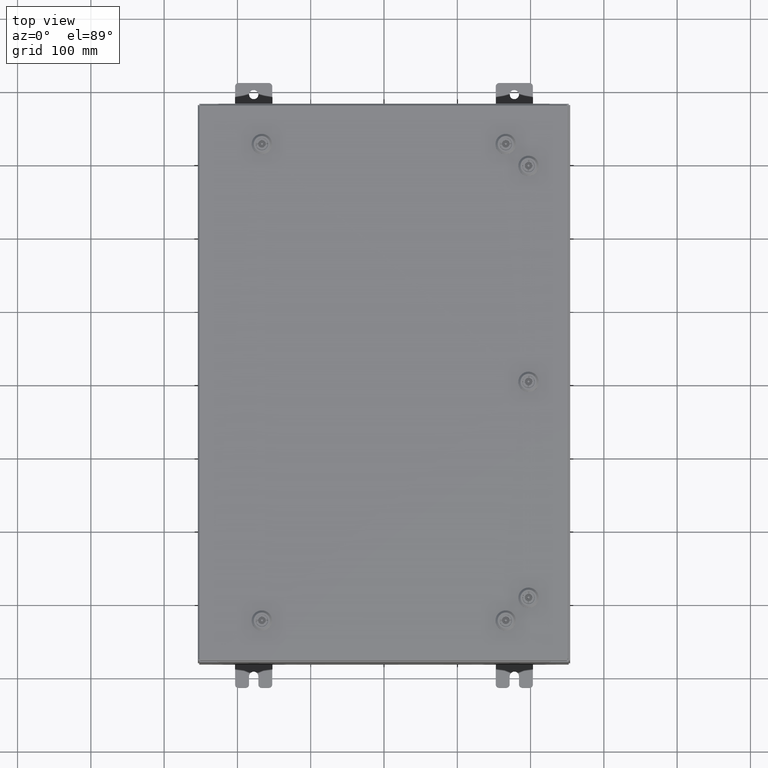
[diagram: clean part render]
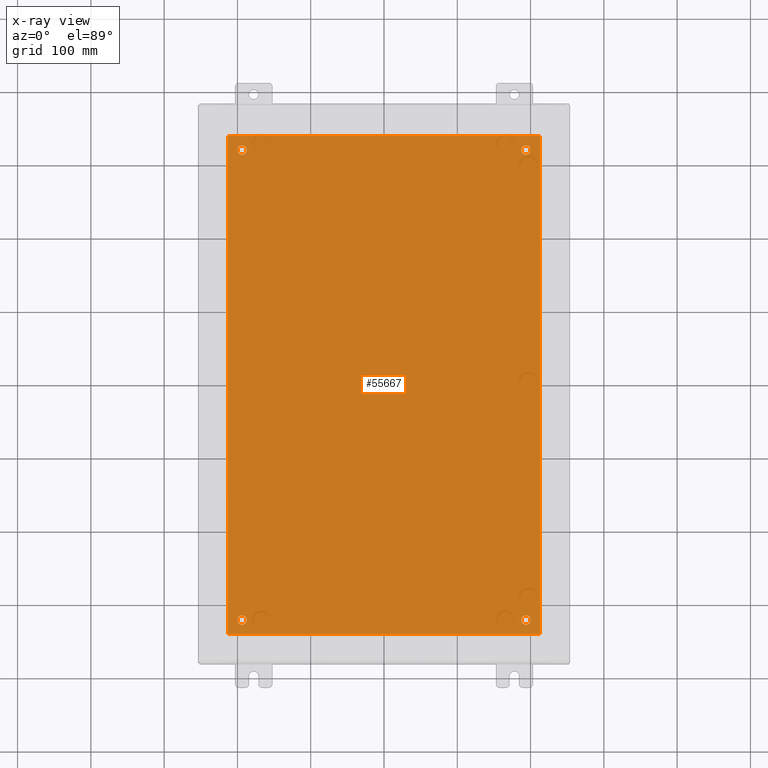
[diagram: x-ray — body ghosted, one internal face saturated and labeled with its STEP entity id]
A machine part, top view, then the same camera in x-ray: the body is ghosted and one INTERNAL B-rep face — a face not visible from any outside direction — is saturated and labeled: STEP entity #55667.
In plain terms, the highlighted planar face has unit normal (0, 0, -1).
Its self-contained STEP definition (entity closure, byte-faithful):
#570 = EDGE_LOOP ( 'NONE', ( #30752, #47068 ) ) ;
#1481 = CARTESIAN_POINT ( 'NONE',  ( -8.383000000000000900, 13.38300000000000100, -0.1039999999999998300 ) ) ;
#1641 = ORIENTED_EDGE ( 'NONE', *, *, #14050, .F. ) ;
#2972 = CARTESIAN_POINT ( 'NONE',  ( 8.500000000000001800, 13.38300000000000300, -0.1040000000000009100 ) ) ;
#2996 = ORIENTED_EDGE ( 'NONE', *, *, #22252, .T. ) ;
#3086 = CARTESIAN_POINT ( 'NONE',  ( -7.625000000000002700, -12.62500000000000200, -0.1039999999999999800 ) ) ;
#4592 = DIRECTION ( 'NONE',  ( -0.0000000000000000000, -0.0000000000000000000, 1.000000000000000000 ) ) ;
#6031 = CARTESIAN_POINT ( 'NONE',  ( 8.383000000000002700, -13.38299999999999200, -0.1039999999999992700 ) ) ;
#6279 = EDGE_LOOP ( 'NONE', ( #63641, #1641, #38001, #55144 ) ) ;
#8077 = DIRECTION ( 'NONE',  ( -1.000000000000000000, 0.0000000000000000000, 0.0000000000000000000 ) ) ;
#8141 = DIRECTION ( 'NONE',  ( 0.0000000000000000000, 0.0000000000000000000, -1.000000000000000000 ) ) ;
#8599 = FACE_OUTER_BOUND ( 'NONE', #6279, .T. ) ;
#8911 = CIRCLE ( 'NONE', #13219, 0.2499999999999998100 ) ;
#9727 = EDGE_LOOP ( 'NONE', ( #2996, #20001 ) ) ;
#11284 = DIRECTION ( 'NONE',  ( -0.0000000000000000000, -0.0000000000000000000, 1.000000000000000000 ) ) ;
#11786 = EDGE_CURVE ( 'NONE', #28549, #40131, #40674, .T. ) ;
#11926 = VERTEX_POINT ( 'NONE', #31333 ) ;
#13183 = DIRECTION ( 'NONE',  ( -0.0000000000000000000, -0.0000000000000000000, 1.000000000000000000 ) ) ;
#13219 = AXIS2_PLACEMENT_3D ( 'NONE', #42731, #13183, #47766 ) ;
#14050 = EDGE_CURVE ( 'NONE', #58628, #31304, #21198, .T. ) ;
#14795 = DIRECTION ( 'NONE',  ( -0.0000000000000000000, -0.0000000000000000000, 1.000000000000000000 ) ) ;
#15728 = ORIENTED_EDGE ( 'NONE', *, *, #11786, .T. ) ;
#15810 = EDGE_CURVE ( 'NONE', #17360, #58628, #20334, .T. ) ;
#16355 = FACE_BOUND ( 'NONE', #60430, .T. ) ;
#16449 = ORIENTED_EDGE ( 'NONE', *, *, #26512, .T. ) ;
#17360 = VERTEX_POINT ( 'NONE', #22060 ) ;
#17958 = AXIS2_PLACEMENT_3D ( 'NONE', #34136, #4592, #39108 ) ;
#18272 = CARTESIAN_POINT ( 'NONE',  ( 7.375000000000004400, 12.62500000000000200, -0.1039999999999999800 ) ) ;
#18587 = CARTESIAN_POINT ( 'NONE',  ( 7.375000000000004400, -12.62500000000000200, -0.1039999999999999800 ) ) ;
#19145 = CARTESIAN_POINT ( 'NONE',  ( -7.375000000000003600, 12.62500000000000200, -0.1039999999999999800 ) ) ;
#20001 = ORIENTED_EDGE ( 'NONE', *, *, #32172, .T. ) ;
#20334 = LINE ( 'NONE', #2972, #45109 ) ;
#21198 = LINE ( 'NONE', #1481, #60750 ) ;
#21502 = DIRECTION ( 'NONE',  ( -0.0000000000000000000, -0.0000000000000000000, 1.000000000000000000 ) ) ;
#21743 = CARTESIAN_POINT ( 'NONE',  ( 7.875000000000001800, 12.62500000000000200, -0.1039999999999999800 ) ) ;
#22060 = CARTESIAN_POINT ( 'NONE',  ( 8.383000000000002700, 13.38300000000000100, -0.1039999999999992700 ) ) ;
#22211 = VECTOR ( 'NONE', #32453, 39.37007874015748100 ) ;
#22252 = EDGE_CURVE ( 'NONE', #52059, #11926, #8911, .T. ) ;
#22311 = CARTESIAN_POINT ( 'NONE',  ( -8.383000000000000900, -13.38299999999999400, -0.1040000000000009100 ) ) ;
#22477 = VERTEX_POINT ( 'NONE', #64239 ) ;
#22873 = VERTEX_POINT ( 'NONE', #18587 ) ;
#23009 = VECTOR ( 'NONE', #35758, 39.37007874015748100 ) ;
#24120 = AXIS2_PLACEMENT_3D ( 'NONE', #26901, #61591, #31846 ) ;
#25763 = DIRECTION ( 'NONE',  ( -0.0000000000000000000, -0.0000000000000000000, 1.000000000000000000 ) ) ;
#25840 = CIRCLE ( 'NONE', #24120, 0.2499999999999987000 ) ;
#26512 = EDGE_CURVE ( 'NONE', #33944, #30565, #45813, .T. ) ;
#26901 = CARTESIAN_POINT ( 'NONE',  ( 7.625000000000002700, -12.62500000000000200, -0.1039999999999999800 ) ) ;
#27756 = DIRECTION ( 'NONE',  ( -1.000000000000000000, -0.0000000000000000000, -0.0000000000000000000 ) ) ;
#28549 = VERTEX_POINT ( 'NONE', #21743 ) ;
#29874 = CIRCLE ( 'NONE', #17958, 0.2499999999999998100 ) ;
#30565 = VERTEX_POINT ( 'NONE', #47918 ) ;
#30752 = ORIENTED_EDGE ( 'NONE', *, *, #62130, .T. ) ;
#31304 = VERTEX_POINT ( 'NONE', #22311 ) ;
#31333 = CARTESIAN_POINT ( 'NONE',  ( -7.875000000000002700, 12.62500000000000200, -0.1039999999999999800 ) ) ;
#31455 = CARTESIAN_POINT ( 'NONE',  ( -8.383000000000000900, 13.38300000000000100, -0.1039999999999998300 ) ) ;
#31846 = DIRECTION ( 'NONE',  ( -1.000000000000000000, 0.0000000000000000000, 0.0000000000000000000 ) ) ;
#32044 = CIRCLE ( 'NONE', #55691, 0.2499999999999987000 ) ;
#32172 = EDGE_CURVE ( 'NONE', #11926, #52059, #29874, .T. ) ;
#32453 = DIRECTION ( 'NONE',  ( 1.000000000000000000, -0.0000000000000000000, -0.0000000000000000000 ) ) ;
#33944 = VERTEX_POINT ( 'NONE', #39023 ) ;
#34136 = CARTESIAN_POINT ( 'NONE',  ( -7.625000000000002700, 12.62500000000000200, -0.1039999999999999800 ) ) ;
#34632 = LINE ( 'NONE', #6031, #23009 ) ;
#35758 = DIRECTION ( 'NONE',  ( 0.0000000000000000000, 1.000000000000000000, 0.0000000000000000000 ) ) ;
#36010 = DIRECTION ( 'NONE',  ( 0.0000000000000000000, -1.000000000000000000, 0.0000000000000000000 ) ) ;
#36907 = AXIS2_PLACEMENT_3D ( 'NONE', #55483, #25763, #60465 ) ;
#37592 = DIRECTION ( 'NONE',  ( -0.0000000000000000000, -0.0000000000000000000, 1.000000000000000000 ) ) ;
#38001 = ORIENTED_EDGE ( 'NONE', *, *, #15810, .F. ) ;
#39023 = CARTESIAN_POINT ( 'NONE',  ( -7.375000000000003600, -12.62500000000000200, -0.1039999999999999800 ) ) ;
#39108 = DIRECTION ( 'NONE',  ( -1.000000000000000000, 0.0000000000000000000, 0.0000000000000000000 ) ) ;
#40131 = VERTEX_POINT ( 'NONE', #18272 ) ;
#40154 = CIRCLE ( 'NONE', #58505, 0.2499999999999998100 ) ;
#40674 = CIRCLE ( 'NONE', #36907, 0.2499999999999987000 ) ;
#40801 = CARTESIAN_POINT ( 'NONE',  ( -7.625000000000002700, -12.62500000000000200, -0.1039999999999999800 ) ) ;
#41936 = EDGE_LOOP ( 'NONE', ( #15728, #54890 ) ) ;
#42502 = EDGE_CURVE ( 'NONE', #30565, #33944, #40154, .T. ) ;
#42731 = CARTESIAN_POINT ( 'NONE',  ( -7.625000000000002700, 12.62500000000000200, -0.1039999999999999800 ) ) ;
#44023 = EDGE_CURVE ( 'NONE', #22477, #17360, #34632, .T. ) ;
#44374 = CARTESIAN_POINT ( 'NONE',  ( 7.625000000000002700, -12.62500000000000200, -0.1039999999999999800 ) ) ;
#45109 = VECTOR ( 'NONE', #27756, 39.37007874015748100 ) ;
#45813 = CIRCLE ( 'NONE', #57188, 0.2499999999999998100 ) ;
#45815 = DIRECTION ( 'NONE',  ( -1.000000000000000000, 0.0000000000000000000, 0.0000000000000000000 ) ) ;
#46475 = FACE_BOUND ( 'NONE', #570, .T. ) ;
#47068 = ORIENTED_EDGE ( 'NONE', *, *, #51426, .T. ) ;
#47697 = PLANE ( 'NONE',  #53745 ) ;
#47766 = DIRECTION ( 'NONE',  ( -1.000000000000000000, 0.0000000000000000000, 0.0000000000000000000 ) ) ;
#47918 = CARTESIAN_POINT ( 'NONE',  ( -7.875000000000002700, -12.62500000000000200, -0.1039999999999999800 ) ) ;
#48026 = FACE_BOUND ( 'NONE', #41936, .T. ) ;
#49401 = DIRECTION ( 'NONE',  ( -1.000000000000000000, 0.0000000000000000000, 0.0000000000000000000 ) ) ;
#51211 = CARTESIAN_POINT ( 'NONE',  ( 7.625000000000002700, 12.62500000000000200, -0.1039999999999999800 ) ) ;
#51426 = EDGE_CURVE ( 'NONE', #22873, #55630, #25840, .T. ) ;
#51700 = LINE ( 'NONE', #57214, #22211 ) ;
#52059 = VERTEX_POINT ( 'NONE', #19145 ) ;
#52377 = CIRCLE ( 'NONE', #63033, 0.2499999999999987000 ) ;
#53745 = AXIS2_PLACEMENT_3D ( 'NONE', #62440, #8141, #57658 ) ;
#54890 = ORIENTED_EDGE ( 'NONE', *, *, #60641, .T. ) ;
#55144 = ORIENTED_EDGE ( 'NONE', *, *, #44023, .F. ) ;
#55483 = CARTESIAN_POINT ( 'NONE',  ( 7.625000000000002700, 12.62500000000000200, -0.1039999999999999800 ) ) ;
#55630 = VERTEX_POINT ( 'NONE', #57445 ) ;
#55667 = ADVANCED_FACE ( 'NONE', ( #16355, #46475, #48026, #59699, #8599 ), #47697, .T. ) ;
#55691 = AXIS2_PLACEMENT_3D ( 'NONE', #44374, #14795, #49401 ) ;
#56186 = DIRECTION ( 'NONE',  ( -1.000000000000000000, 0.0000000000000000000, 0.0000000000000000000 ) ) ;
#56735 = ORIENTED_EDGE ( 'NONE', *, *, #42502, .T. ) ;
#57188 = AXIS2_PLACEMENT_3D ( 'NONE', #3086, #37592, #8077 ) ;
#57214 = CARTESIAN_POINT ( 'NONE',  ( -8.500000000000000000, -13.38299999999999400, -0.1040000000000009100 ) ) ;
#57445 = CARTESIAN_POINT ( 'NONE',  ( 7.875000000000001800, -12.62500000000000200, -0.1039999999999999800 ) ) ;
#57658 = DIRECTION ( 'NONE',  ( -1.000000000000000000, 0.0000000000000000000, -0.0000000000000000000 ) ) ;
#58505 = AXIS2_PLACEMENT_3D ( 'NONE', #40801, #11284, #45815 ) ;
#58628 = VERTEX_POINT ( 'NONE', #31455 ) ;
#59281 = EDGE_CURVE ( 'NONE', #31304, #22477, #51700, .T. ) ;
#59699 = FACE_BOUND ( 'NONE', #9727, .T. ) ;
#60430 = EDGE_LOOP ( 'NONE', ( #16449, #56735 ) ) ;
#60465 = DIRECTION ( 'NONE',  ( -1.000000000000000000, 0.0000000000000000000, 0.0000000000000000000 ) ) ;
#60641 = EDGE_CURVE ( 'NONE', #40131, #28549, #52377, .T. ) ;
#60750 = VECTOR ( 'NONE', #36010, 39.37007874015748100 ) ;
#61591 = DIRECTION ( 'NONE',  ( -0.0000000000000000000, -0.0000000000000000000, 1.000000000000000000 ) ) ;
#62130 = EDGE_CURVE ( 'NONE', #55630, #22873, #32044, .T. ) ;
#62440 = CARTESIAN_POINT ( 'NONE',  ( 0.0000000000000000000, 0.0000000000000000000, -0.1039999999999999800 ) ) ;
#63033 = AXIS2_PLACEMENT_3D ( 'NONE', #51211, #21502, #56186 ) ;
#63641 = ORIENTED_EDGE ( 'NONE', *, *, #59281, .F. ) ;
#64239 = CARTESIAN_POINT ( 'NONE',  ( 8.383000000000002700, -13.38299999999999200, -0.1039999999999992700 ) ) ;